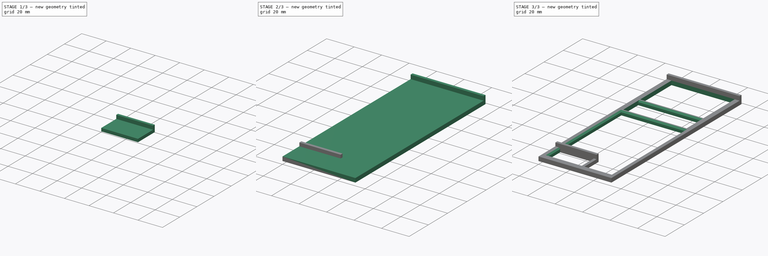
[diagram: build sequence overview — one tinted view per stage of 3, left to right]
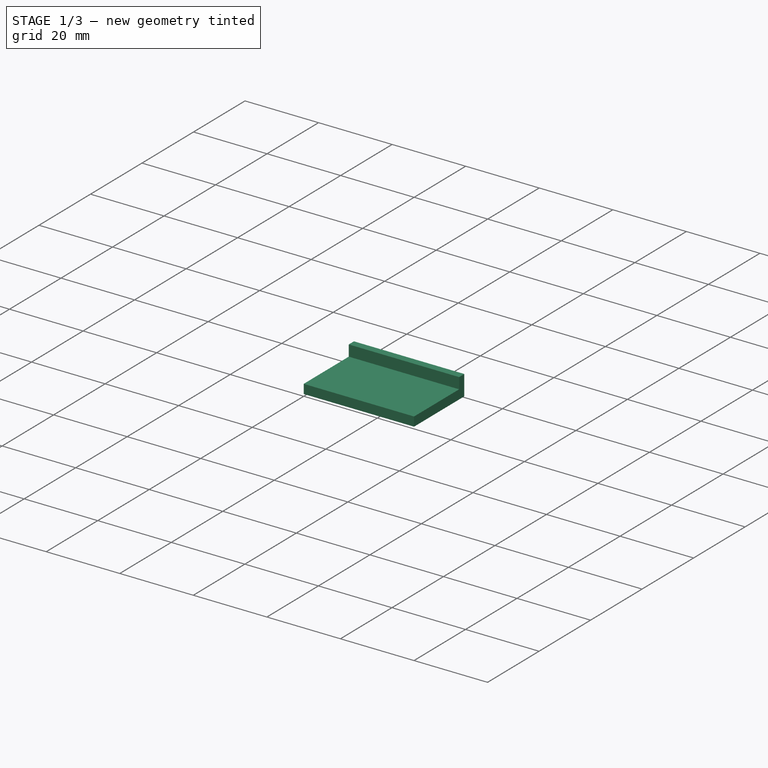
[diagram: stage 1 of 3 — iso view after this stage's code; geometry added in this stage tinted green]
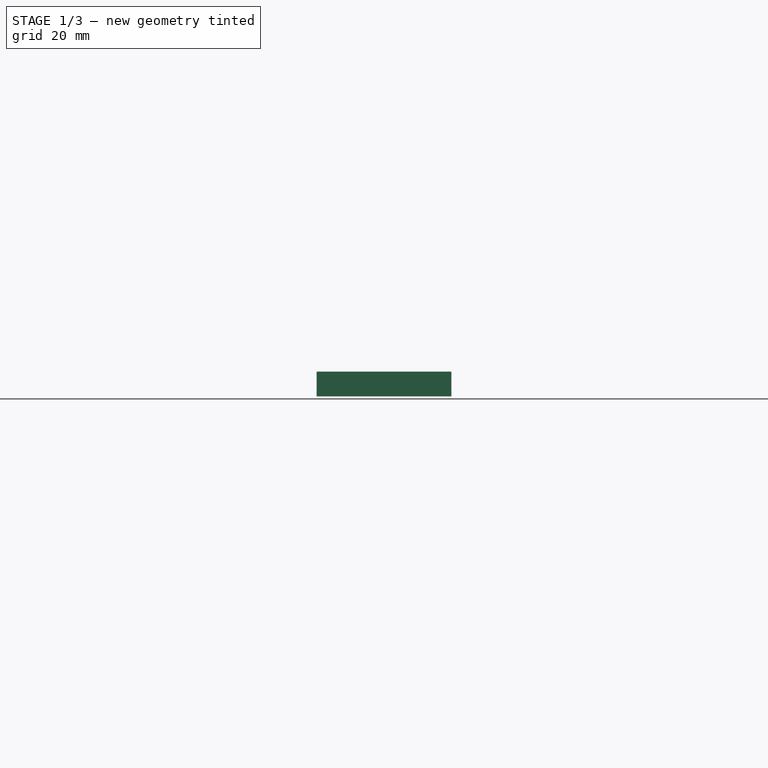
[diagram: stage 1 of 3 — front view after this stage's code; geometry added in this stage tinted green]
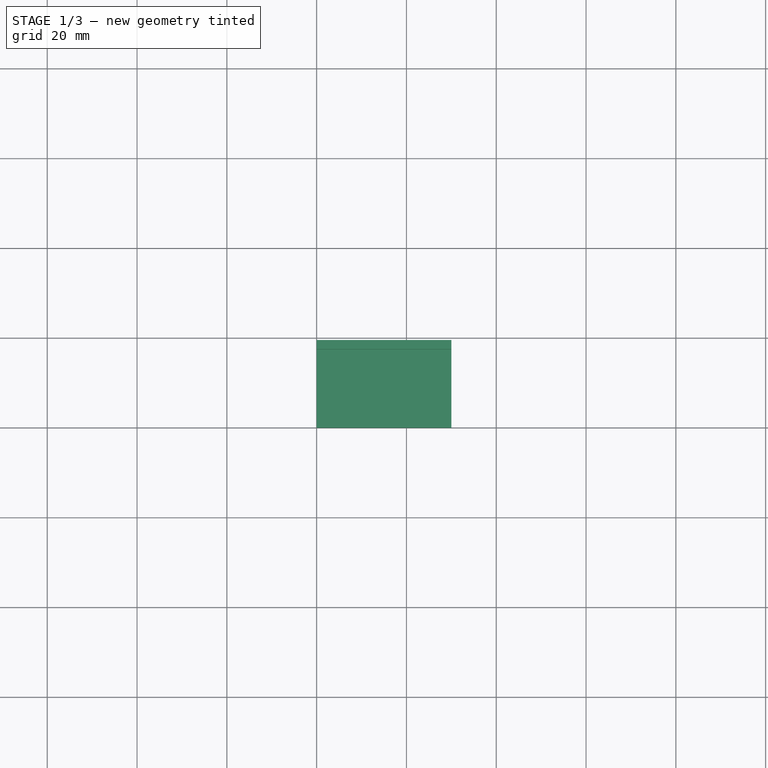
[diagram: stage 1 of 3 — top view after this stage's code; geometry added in this stage tinted green]
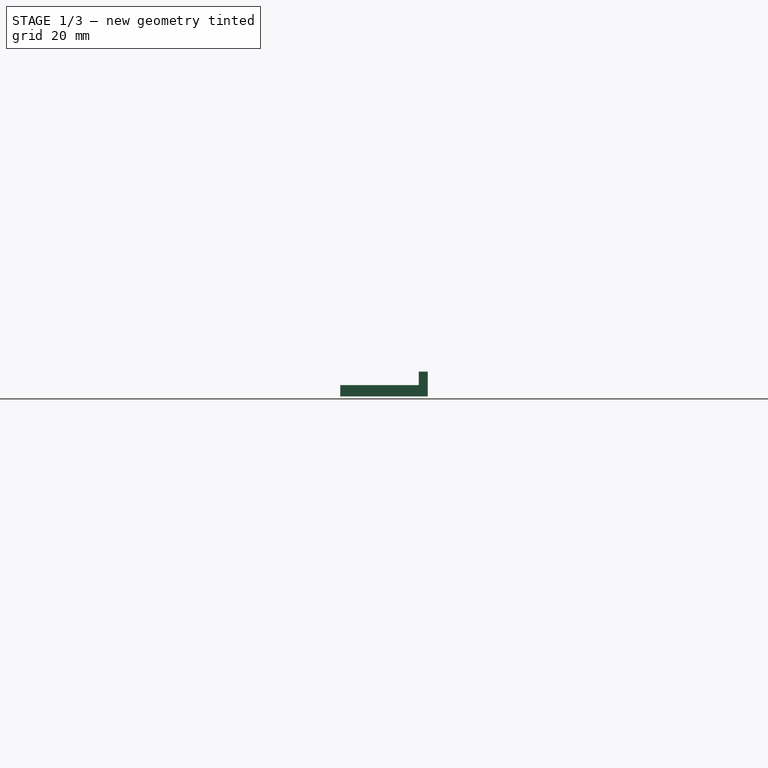
[diagram: stage 1 of 3 — right view after this stage's code; geometry added in this stage tinted green]
FCSTD DOCUMENT  (FreeCAD 1.0R39319 (Git))
Label: Wing&SparTemplate
License: All rights reserved
LicenseURL: https://en.wikipedia.org/wiki/All_rights_reserved
objects: Sketcher::SketchObject×6, PartDesign::Pad×4, PartDesign::Pocket×2, PartDesign::Body×2, PartDesign::Chamfer×1
note: 35 computed .brp shape members not serialized (recipe doc carries the construction recipe); baked Part::Feature solids carry a one-line shape summary decoded from their .brp

FEATURE [PartDesign::Body] Body  label="WingTemplate"
  AllowCompound = false
  Group = -> [Sketch,Pad,Sketch001,Pad001,Sketch003,Pocket001,Chamfer]
  Origin = -> Origin
  Tip = -> Chamfer
FEATURE [Sketcher::SketchObject] Sketch004
  ArcFitTolerance = 1e-06
  AttachmentSupport = -> [XY_Plane001]
  FullyConstrained = true
  MakeInternals = false
  MapMode = 5
  sketch-geometry (4):
    g0: LineSegment StartX=0 StartY=1e-16 StartZ=0 EndX=30 EndY=1e-16 EndZ=0
    g1: LineSegment StartX=30 StartY=1e-16 StartZ=0 EndX=30 EndY=19.5 EndZ=0
    g2: LineSegment StartX=30 StartY=19.5 StartZ=0 EndX=0 EndY=19.5 EndZ=0
    g3: LineSegment StartX=0 StartY=19.5 StartZ=0 EndX=0 EndY=0 EndZ=0
  constraints (11):
    c: Coincident(g0,g1)
    c: Coincident(g1,g2)
    c: Coincident(g2,g3)
    c: Coincident(g3,g0)
    c: Horizontal(g0)
    c: Horizontal(g2)
    c: Vertical(g1)
    c: Vertical(g3)
    c: Distance(g1,g3) = 30
    c: Distance(g0,g2) = 19.5
    c: Coincident(g0,g-1)
FEATURE [PartDesign::Pad] Pad002
  Direction = (0,0,1)
  Length = 2.5
  Length2 = 10
  Profile = -> Sketch004
  ReferenceAxis = -> Sketch004 [N_Axis]
  Refine = true
  Suppressed = false
  Type = 0
FEATURE [Sketcher::SketchObject] Sketch005
  ArcFitTolerance = 1e-06
  AttachmentSupport = -> [Pad002]
  ExternalGeometry = -> [Pad002]
  FullyConstrained = true
  MakeInternals = false
  MapMode = 5
  Placement = pos=(0,0,2.5) rot=(0,0,1;0rad)
  sketch-geometry (4):
    g0: LineSegment StartX=0 StartY=17.5 StartZ=0 EndX=0 EndY=19.5 EndZ=0
    g1: LineSegment StartX=0 StartY=19.5 StartZ=0 EndX=30 EndY=19.5 EndZ=0
    g2: LineSegment StartX=30 StartY=19.5 StartZ=0 EndX=30 EndY=17.5 EndZ=0
    g3: LineSegment StartX=30 StartY=17.5 StartZ=0 EndX=0 EndY=17.5 EndZ=0
  constraints (11):
    c: Coincident(g0,g1)
    c: Coincident(g1,g2)
    c: Coincident(g2,g3)
    c: Coincident(g3,g0)
    c: Vertical(g0)
    c: Vertical(g2)
    c: Horizontal(g1)
    c: Horizontal(g3)
    c: Distance(g1,g3) = 2
    c: DistanceX(g1,g1) = 30
    c: Coincident(g0,g-5)
FEATURE [PartDesign::Pad] Pad003
  BaseFeature = -> Pad002
  Direction = (0,0,1)
  Length = 3
  Length2 = 10
  Profile = -> Sketch005
  ReferenceAxis = -> Sketch005 [N_Axis]
  Refine = true
  Suppressed = false
  Type = 0
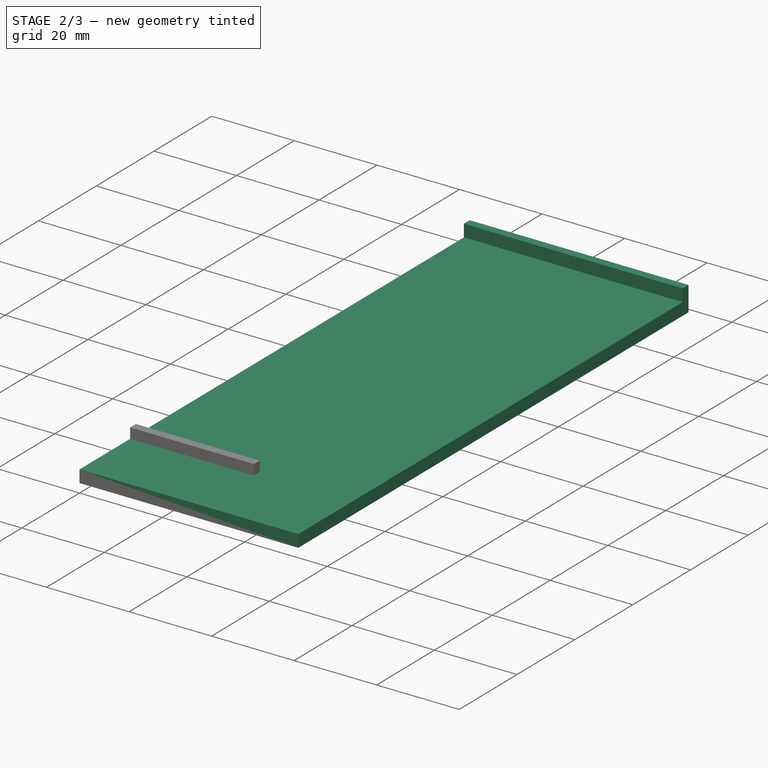
[diagram: stage 2 of 3 — iso view after this stage's code; geometry added in this stage tinted green]
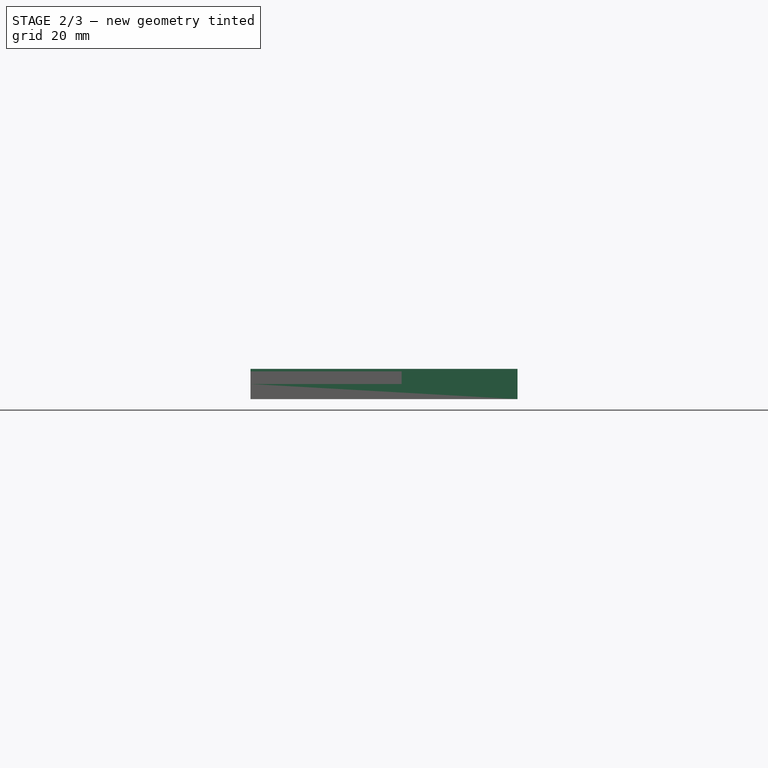
[diagram: stage 2 of 3 — front view after this stage's code; geometry added in this stage tinted green]
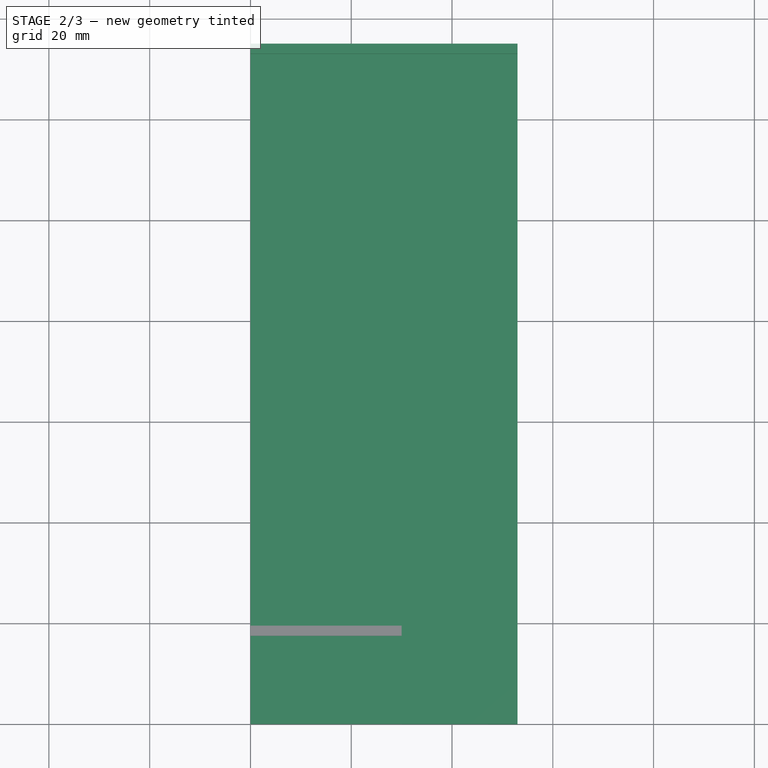
[diagram: stage 2 of 3 — top view after this stage's code; geometry added in this stage tinted green]
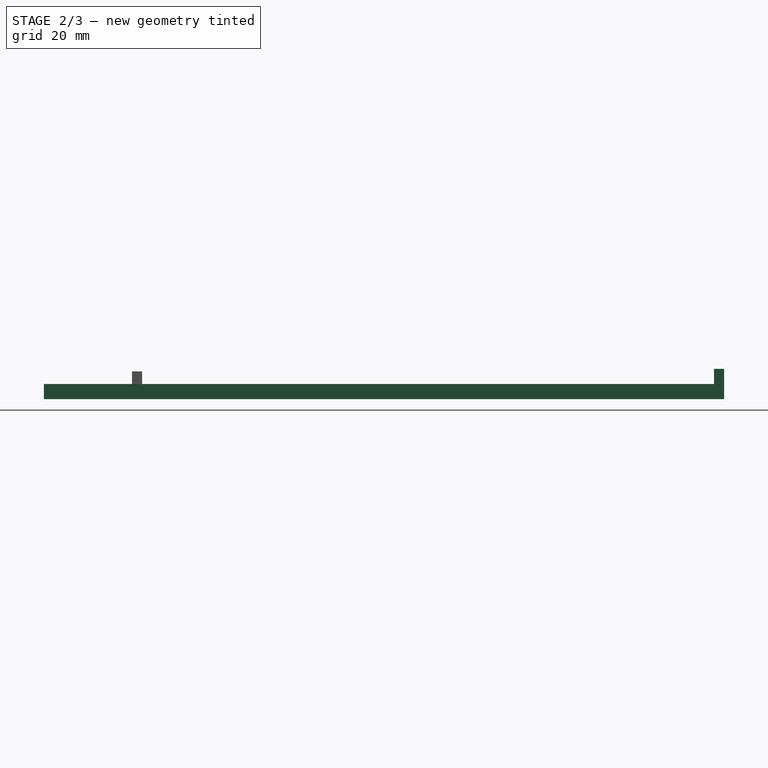
[diagram: stage 2 of 3 — right view after this stage's code; geometry added in this stage tinted green]
FEATURE [Sketcher::SketchObject] Sketch
  ArcFitTolerance = 1e-06
  AttachmentSupport = -> [XY_Plane]
  FullyConstrained = true
  MakeInternals = false
  MapMode = 5
  sketch-geometry (4):
    g0: LineSegment StartX=0 StartY=0 StartZ=0 EndX=53 EndY=0 EndZ=0
    g1: LineSegment StartX=53 StartY=0 StartZ=0 EndX=53 EndY=135 EndZ=0
    g2: LineSegment StartX=53 StartY=135 StartZ=0 EndX=0 EndY=135 EndZ=0
    g3: LineSegment StartX=0 StartY=135 StartZ=0 EndX=0 EndY=0 EndZ=0
  constraints (11):
    c: Coincident(g0,g1)
    c: Coincident(g1,g2)
    c: Coincident(g2,g3)
    c: Coincident(g3,g0)
    c: Horizontal(g0)
    c: Horizontal(g2)
    c: Vertical(g1)
    c: Vertical(g3)
    c: Distance(g1,g3) = 53
    c: Distance(g0,g2) = 135
    c: Coincident(g0,g-1)
FEATURE [PartDesign::Pad] Pad
  Direction = (0,0,1)
  Length = 3
  Length2 = 10
  Profile = -> Sketch
  ReferenceAxis = -> Sketch [N_Axis]
  Refine = true
  Suppressed = false
  Type = 0
FEATURE [Sketcher::SketchObject] Sketch001
  ArcFitTolerance = 1e-06
  AttachmentSupport = -> [Pad]
  ExternalGeometry = -> [Pad]
  FullyConstrained = true
  MakeInternals = false
  MapMode = 5
  Placement = pos=(0,0,3) rot=(0,0,1;0rad)
  sketch-geometry (4):
    g0: LineSegment StartX=0 StartY=135 StartZ=0 EndX=0 EndY=133 EndZ=0
    g1: LineSegment StartX=0 StartY=133 StartZ=0 EndX=53 EndY=133 EndZ=0
    g2: LineSegment StartX=53 StartY=133 StartZ=0 EndX=53 EndY=135 EndZ=0
    g3: LineSegment StartX=53 StartY=135 StartZ=0 EndX=0 EndY=135 EndZ=0
  constraints (11):
    c: Coincident(g0,g1)
    c: Coincident(g1,g2)
    c: Coincident(g2,g3)
    c: Coincident(g3,g0)
    c: Vertical(g0)
    c: Vertical(g2)
    c: Horizontal(g1)
    c: Horizontal(g3)
    c: Distance(g1,g3) = 2
    c: Coincident(g0,g-3)
    c: PointOnObject(g1,g-4)
FEATURE [PartDesign::Pad] Pad001
  BaseFeature = -> Pad
  Direction = (0,0,1)
  Length = 3
  Length2 = 10
  Profile = -> Sketch001
  ReferenceAxis = -> Sketch001 [N_Axis]
  Refine = true
  Suppressed = false
  Type = 0
FEATURE [Sketcher::SketchObject] Sketch002
  ArcFitTolerance = 1e-06
  AttachmentSupport = -> [Pad003]
  ExternalGeometry = -> [Pad003]
  FullyConstrained = true
  MakeInternals = false
  MapMode = 5
  Placement = pos=(0,0,2.5) rot=(0,0,1;0rad)
  sketch-geometry (4):
    g0: LineSegment StartX=2 StartY=17.5 StartZ=0 EndX=2 EndY=2 EndZ=0
    g1: LineSegment StartX=2 StartY=2 StartZ=0 EndX=28 EndY=2 EndZ=0
    g2: LineSegment StartX=28 StartY=2 StartZ=0 EndX=28 EndY=17.5 EndZ=0
    g3: LineSegment StartX=28 StartY=17.5 StartZ=0 EndX=2 EndY=17.5 EndZ=0
  constraints (12):
    c: Coincident(g0,g1)
    c: Coincident(g1,g2)
    c: Coincident(g2,g3)
    c: Coincident(g3,g0)
    c: Vertical(g0)
    c: Vertical(g2)
    c: Horizontal(g1)
    c: Horizontal(g3)
    c: Distance(g-3,g2) = 2
    c: Distance(g-4,g0) = 2
    c: Distance(g3,g1) = 15.5
    c: Distance(g-5,g1) = 2
FEATURE [PartDesign::Pocket] Pocket
  BaseFeature = -> Pad003
  Direction = (0,0,-1)
  Length = 5
  Length2 = 5
  Profile = -> Sketch002
  ReferenceAxis = -> Sketch002 [N_Axis]
  Refine = true
  Suppressed = false
  Type = 1
FEATURE [PartDesign::Body] Body001  label="SparTemplate"
  AllowCompound = false
  Group = -> [Sketch004,Pad002,Sketch005,Pad003,Sketch002,Pocket]
  Origin = -> Origin001
  Placement = pos=(55,0,0) rot=(0,0,1;0rad)
  Tip = -> Pocket
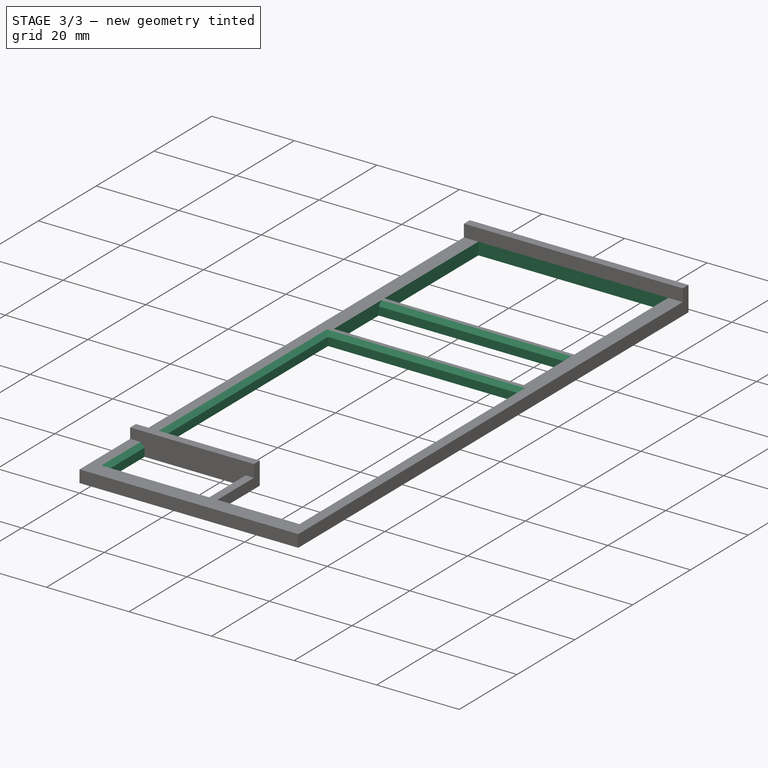
[diagram: stage 3 of 3 — iso view after this stage's code; geometry added in this stage tinted green]
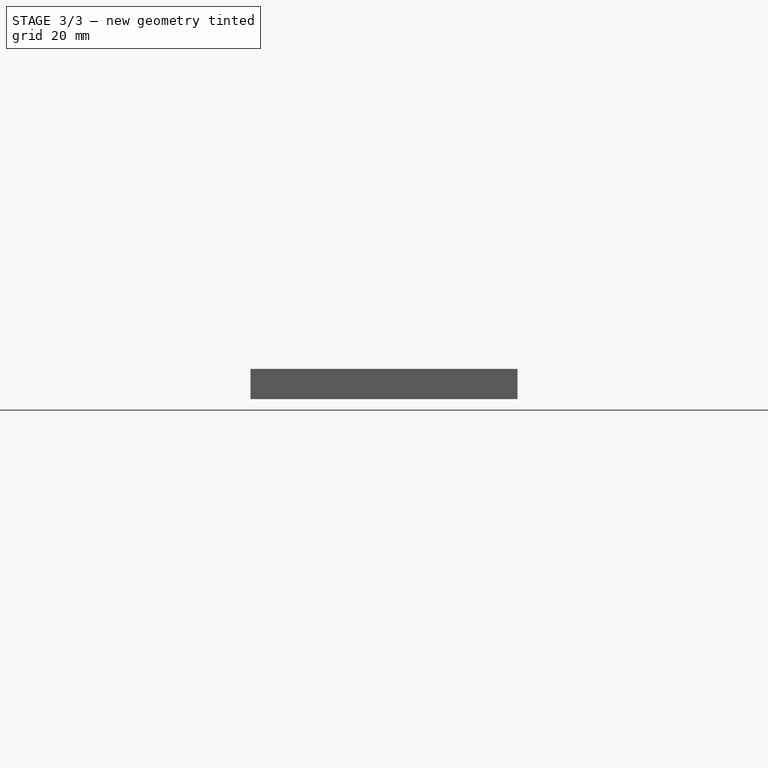
[diagram: stage 3 of 3 — front view after this stage's code; geometry added in this stage tinted green]
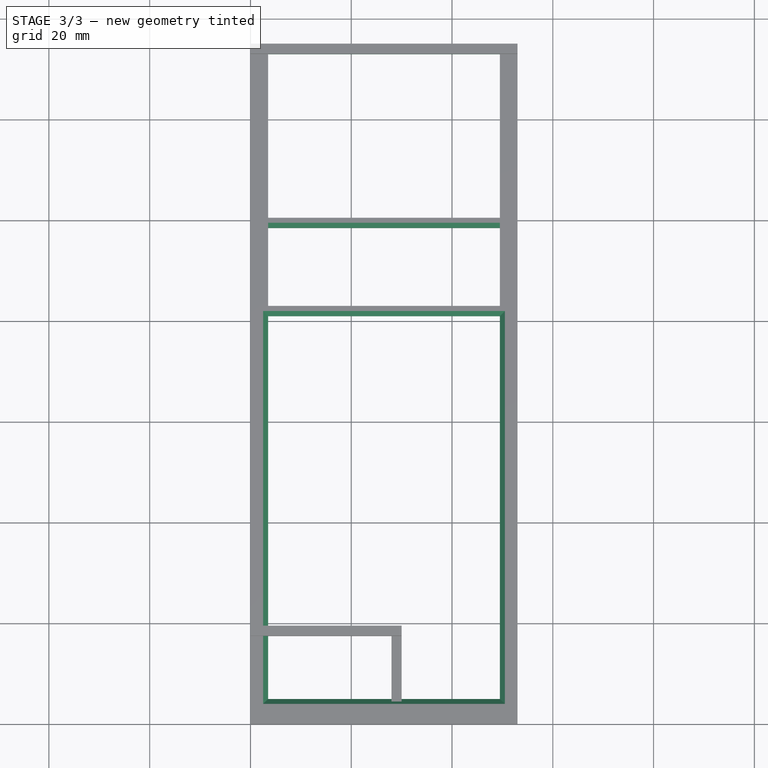
[diagram: stage 3 of 3 — top view after this stage's code; geometry added in this stage tinted green]
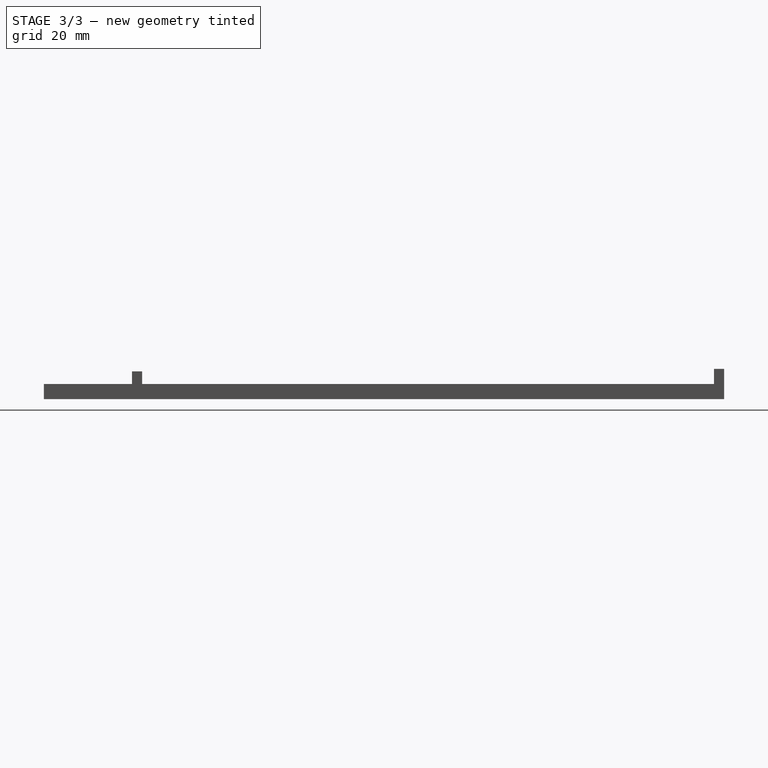
[diagram: stage 3 of 3 — right view after this stage's code; geometry added in this stage tinted green]
FEATURE [Sketcher::SketchObject] Sketch003
  ArcFitTolerance = 1e-06
  AttachmentSupport = -> [Pad001]
  ExternalGeometry = -> [Pad001]
  FullyConstrained = true
  MakeInternals = false
  MapMode = 5
  Placement = pos=(0,0,3) rot=(0,0,1;0rad)
  sketch-geometry (16):
    g0: LineSegment StartX=3.5 StartY=133 StartZ=0 EndX=3.5 EndY=100.5 EndZ=0
    g1: LineSegment StartX=3.5 StartY=100.5 StartZ=0 EndX=49.5 EndY=100.5 EndZ=0
    g2: LineSegment StartX=49.5 StartY=100.5 StartZ=0 EndX=49.5 EndY=133 EndZ=0
    g3: LineSegment StartX=49.5 StartY=133 StartZ=0 EndX=3.5 EndY=133 EndZ=0
    g4: LineSegment StartX=3.5 StartY=98.5 StartZ=0 EndX=3.5 EndY=83 EndZ=0
    g5: LineSegment StartX=3.5 StartY=83 StartZ=0 EndX=49.5 EndY=83 EndZ=0
    g6: LineSegment StartX=49.5 StartY=83 StartZ=0 EndX=49.5 EndY=98.5 EndZ=0
    g7: LineSegment StartX=49.5 StartY=98.5 StartZ=0 EndX=3.5 EndY=98.5 EndZ=0
    g8: LineSegment StartX=3.5 StartY=81 StartZ=0 EndX=3.5 EndY=5 EndZ=0
    g9: LineSegment StartX=3.5 StartY=5 StartZ=0 EndX=49.5 EndY=5 EndZ=0
    g10: LineSegment StartX=49.5 StartY=5 StartZ=0 EndX=49.5 EndY=81 EndZ=0
    g11: LineSegment StartX=49.5 StartY=81 StartZ=0 EndX=3.5 EndY=81 EndZ=0
    g12: LineSegment [constr] StartX=49.5 StartY=100.5 StartZ=0 EndX=49.5 EndY=98.5 EndZ=0
    g13: LineSegment [constr] StartX=49.5 StartY=83 StartZ=0 EndX=49.5 EndY=81 EndZ=0
    g14: LineSegment [constr] StartX=0 StartY=0 StartZ=0 EndX=3.5 EndY=5 EndZ=0
    g15: LineSegment [constr] StartX=53 StartY=0 StartZ=0 EndX=49.5 EndY=5 EndZ=0
  constraints (44):
    c: Coincident(g0,g1)
    c: Coincident(g1,g2)
    c: Coincident(g2,g3)
    c: Coincident(g3,g0)
    c: Vertical(g0)
    c: Vertical(g2)
    c: Horizontal(g1)
    c: Horizontal(g3)
    c: Distance(g0,g2) = 46
    c: Distance(g1,g3) = 32.5
    c: PointOnObject(g0,g-3)
    c: Coincident(g4,g5)
    c: Coincident(g5,g6)
    c: Coincident(g6,g7)
    c: Coincident(g7,g4)
    c: Vertical(g4)
    c: Vertical(g6)
    c: Horizontal(g5)
    c: Horizontal(g7)
    c: Distance(g4,g6) = 46
    c: Distance(g-3,g5) = 50
    c: Distance(g1,g7) = 2
    c: Coincident(g8,g9)
    c: Coincident(g9,g10)
    c: Coincident(g10,g11)
    c: Coincident(g11,g8)
    c: Vertical(g8)
    c: Vertical(g10)
    c: Horizontal(g9)
    c: Horizontal(g11)
    c: Distance(g8,g10) = 46
    c: Distance(g5,g11) = 2
    c: Coincident(g12,g1)
    c: Coincident(g12,g6)
    c: Vertical(g12)
    c: Coincident(g13,g5)
    c: Coincident(g13,g10)
    c: Vertical(g13)
    c: DistanceY(g10,g10) = 76
    c: Coincident(g14,g-1)
    c: Coincident(g14,g8)
    c: Coincident(g15,g-4)
    c: Coincident(g15,g9)
    c: Equal(g15,g14)
FEATURE [PartDesign::Pocket] Pocket001
  BaseFeature = -> Pad001
  Direction = (0,0,-1)
  Length = 5
  Length2 = 5
  Profile = -> Sketch003
  ReferenceAxis = -> Sketch003 [N_Axis]
  Refine = true
  Suppressed = false
  Type = 0
FEATURE [PartDesign::Chamfer] Chamfer
  Angle = 45
  Base = -> Pocket001 [Edge40,Edge36,Edge34,Edge35,Edge33]
  BaseFeature = -> Pocket001
  ChamferType = 0
  FlipDirection = false
  Refine = true
  Size = 1
  Size2 = 1
  SupportTransform = false
  Suppressed = false
  UseAllEdges = false
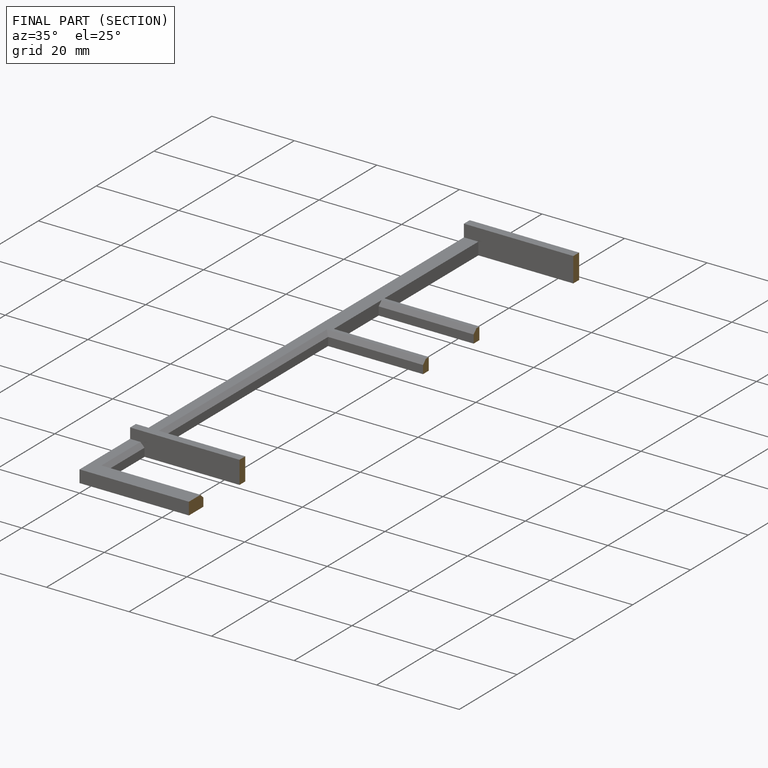
[diagram: finished part — half-section view (interior)]
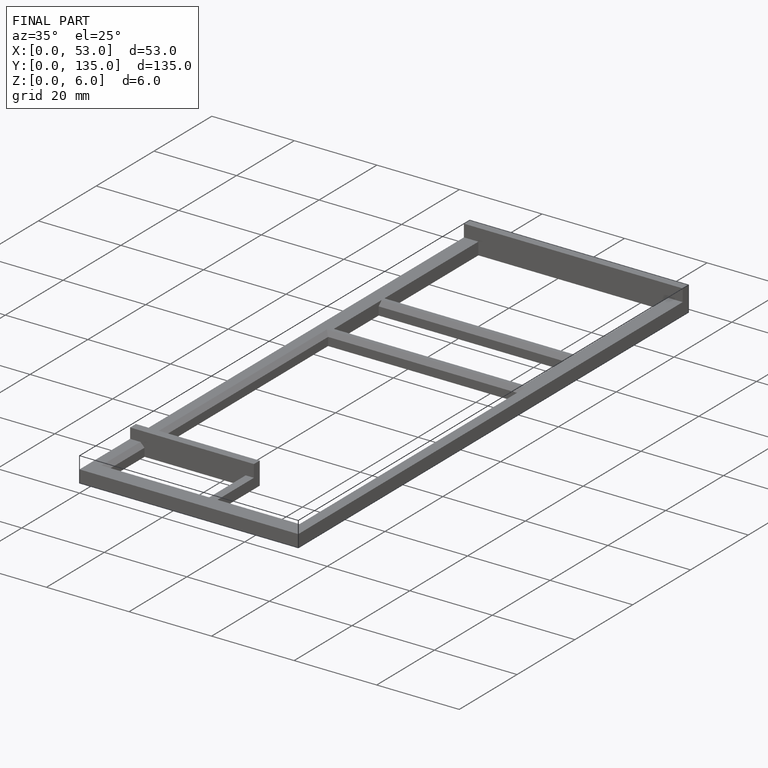
[diagram: finished part — iso view with bounding-box wireframe]
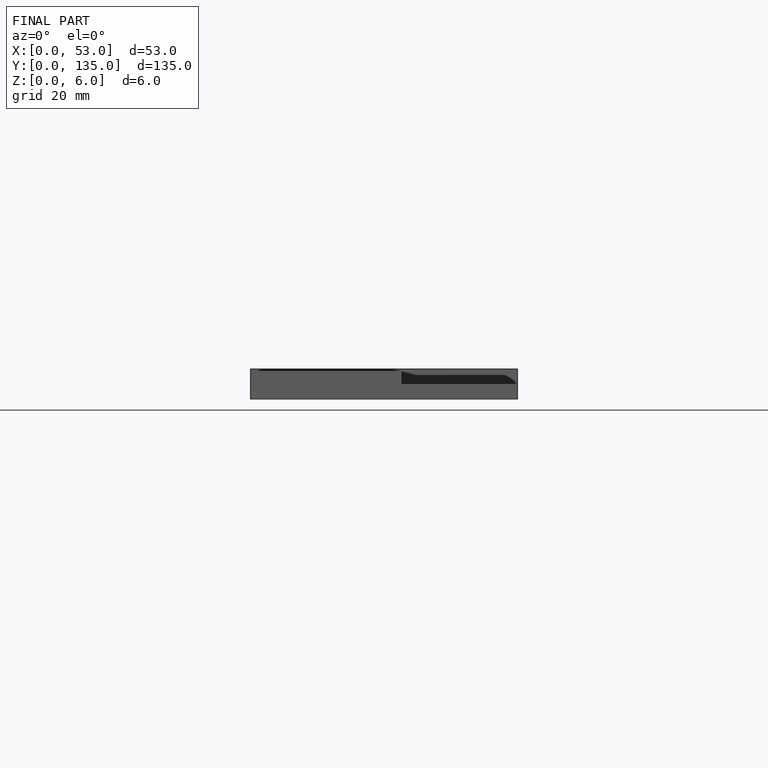
[diagram: finished part — front view with bounding-box wireframe]
